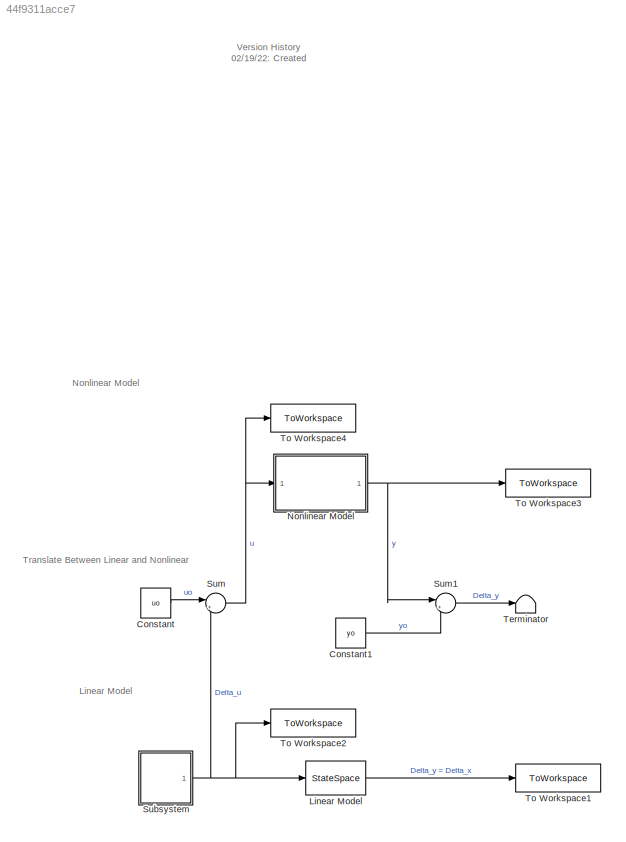
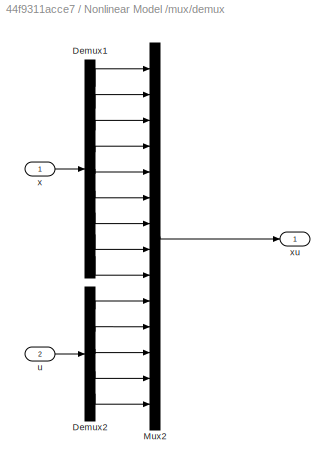
MODEL slx_44f9311acce7
KIND model
CONFIG AbsTol = auto
CONFIG EnableMultiTasking = on
CONFIG FixedStep = t_sample
CONFIG MaxStep = .05
CONFIG MinStep = auto
CONFIG RelTol = 1e-3
CONFIG SampleTimeConstraint = Unconstrained
CONFIG SolverName = ode3
CONFIG StartTime = 0.0
CONFIG StopTime = t_final
BLOCK [Constant] Constant
  Value = uo
BLOCK [Constant] Constant1
  Value = yo
BLOCK [StateSpace] Linear Model
  A = A
  B = B
  C = C
  D = D
  InitialCondition = Delta_x0
  Ports = [1, 1]
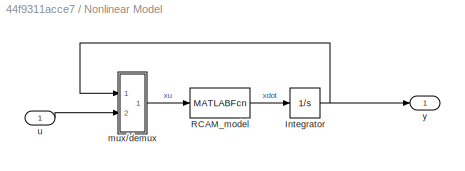
BLOCK [SubSystem] Nonlinear Model 
  Ports = [1, 1]
  RequestExecContextInheritance = off
BLOCK [Integrator] Nonlinear Model /Integrator
  InitialCondition = xo+Delta_x0
  Ports = [1, 1]
BLOCK [MATLABFcn] Nonlinear Model /RCAM_model
  MATLABFcn = RCAM_model([u(1);u(2);u(3);u(4);u(5);u(6);u(7);u(8);u(9)],[u(10);u(11);u(12);u(13);u(14)])
  Ports = [1, 1]
BLOCK [SubSystem] Nonlinear Model /mux//demux
  Ports = [2, 1]
  RequestExecContextInheritance = off
BLOCK [Demux] Nonlinear Model /mux//demux/Demux1
  DisplayOption = none
  Outputs = 9
  Ports = [1, 9]
BLOCK [Demux] Nonlinear Model /mux//demux/Demux2
  DisplayOption = none
  Outputs = 5
  Ports = [1, 5]
BLOCK [Mux] Nonlinear Model /mux//demux/Mux2
  DisplayOption = bar
  Inputs = 14
  Ports = [14, 1]
BLOCK [Inport] Nonlinear Model /mux//demux/u
  Port = 2
BLOCK [Inport] Nonlinear Model /mux//demux/x
BLOCK [Outport] Nonlinear Model /mux//demux/xu
  VectorParamsAs1DForOutWhenUnconnected = off
BLOCK [Inport] Nonlinear Model /u
BLOCK [Outport] Nonlinear Model /y
  VectorParamsAs1DForOutWhenUnconnected = off
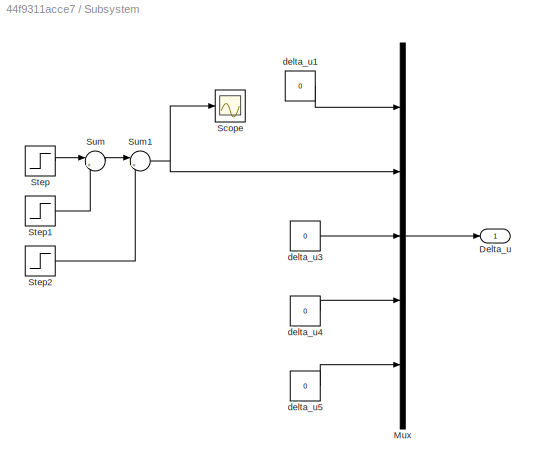
BLOCK [SubSystem] Subsystem
  Ports = [0, 1]
  RequestExecContextInheritance = off
BLOCK [Outport] Subsystem/Delta_u
  VectorParamsAs1DForOutWhenUnconnected = off
BLOCK [Mux] Subsystem/Mux
  DisplayOption = bar
  Inputs = 5
  Ports = [5, 1]
BLOCK [Scope] Subsystem/Scope
  Floating = off
  NumInputPorts = 1
  Ports = [1]
  ScopeSpecificationString = C++SS(StrPVP('Location','[188, 390, 512, 629]'),StrPVP('Open','off'),MxPVP('AxesTitles',54,'struct(''axes1'',''%<SignalLabel>'')'),StrPVP('DataFormat','StructureWithTime'),StrPVP('BlockParamSampleTime','0'),StrPVP('LimitDataPoints','on'),StrPVP('Decimation','1'),StrPVP('BlockParamSampleInput','off'))
BLOCK [Step] Subsystem/Step
  After = doublet_mag
  SampleTime = 0
  Time = 5
BLOCK [Step] Subsystem/Step1
  After = -2*doublet_mag
  SampleTime = 0
  Time = 5+doublet_duration
BLOCK [Step] Subsystem/Step2
  After = doublet_mag
  SampleTime = 0
  Time = 5+2*doublet_duration
BLOCK [Sum] Subsystem/Sum
  Inputs = |++
  Ports = [2, 1]
  SaturateOnIntegerOverflow = on
BLOCK [Sum] Subsystem/Sum1
  Inputs = |++
  Ports = [2, 1]
  SaturateOnIntegerOverflow = on
BLOCK [Constant] Subsystem/delta_u1
  Value = 0
BLOCK [Constant] Subsystem/delta_u3
  Value = 0
BLOCK [Constant] Subsystem/delta_u4
  Value = 0
BLOCK [Constant] Subsystem/delta_u5
  Value = 0
BLOCK [Sum] Sum
  Inputs = |++
  Ports = [2, 1]
BLOCK [Sum] Sum1
  Inputs = |+-
  Ports = [2, 1]
BLOCK [Terminator] Terminator
BLOCK [ToWorkspace] To Workspace1
  MaxDataPoints = inf
  Ports = [1]
  SampleTime = -1
  SaveFormat = Structure With Time
  VariableName = sim_Delta_y
BLOCK [ToWorkspace] To Workspace2
  MaxDataPoints = inf
  Ports = [1]
  SampleTime = -1
  SaveFormat = Structure With Time
  VariableName = sim_Delta_u
BLOCK [ToWorkspace] To Workspace3
  MaxDataPoints = inf
  Ports = [1]
  SampleTime = -1
  SaveFormat = Structure With Time
  VariableName = sim_y
BLOCK [ToWorkspace] To Workspace4
  MaxDataPoints = inf
  Ports = [1]
  SampleTime = -1
  SaveFormat = Structure With Time
  VariableName = sim_u
ANNOTATION (root): Linear Model
ANNOTATION (root): Nonlinear Model
ANNOTATION (root): Translate Between Linear and Nonlinear
ANNOTATION (root): Version History 02/19/22: Created
LINE Constant1:1 -> Sum1:2
LINE Constant:1 -> Sum:1
LINE Linear Model:1 -> To Workspace1:1
NET Nonlinear Model /Integrator:1 -> Nonlinear Model /mux//demux:1, Nonlinear Model /y:1
LINE Nonlinear Model /RCAM_model:1 -> Nonlinear Model /Integrator:1
LINE Nonlinear Model /mux//demux/Demux1:1 -> Nonlinear Model /mux//demux/Mux2:1
LINE Nonlinear Model /mux//demux/Demux1:2 -> Nonlinear Model /mux//demux/Mux2:2
LINE Nonlinear Model /mux//demux/Demux1:3 -> Nonlinear Model /mux//demux/Mux2:3
LINE Nonlinear Model /mux//demux/Demux1:4 -> Nonlinear Model /mux//demux/Mux2:4
LINE Nonlinear Model /mux//demux/Demux1:5 -> Nonlinear Model /mux//demux/Mux2:5
LINE Nonlinear Model /mux//demux/Demux1:6 -> Nonlinear Model /mux//demux/Mux2:6
LINE Nonlinear Model /mux//demux/Demux1:7 -> Nonlinear Model /mux//demux/Mux2:7
LINE Nonlinear Model /mux//demux/Demux1:8 -> Nonlinear Model /mux//demux/Mux2:8
LINE Nonlinear Model /mux//demux/Demux1:9 -> Nonlinear Model /mux//demux/Mux2:9
LINE Nonlinear Model /mux//demux/Demux2:1 -> Nonlinear Model /mux//demux/Mux2:10
LINE Nonlinear Model /mux//demux/Demux2:2 -> Nonlinear Model /mux//demux/Mux2:11
LINE Nonlinear Model /mux//demux/Demux2:3 -> Nonlinear Model /mux//demux/Mux2:12
LINE Nonlinear Model /mux//demux/Demux2:4 -> Nonlinear Model /mux//demux/Mux2:13
LINE Nonlinear Model /mux//demux/Demux2:5 -> Nonlinear Model /mux//demux/Mux2:14
LINE Nonlinear Model /mux//demux/Mux2:1 -> Nonlinear Model /mux//demux/xu:1
LINE Nonlinear Model /mux//demux/u:1 -> Nonlinear Model /mux//demux/Demux2:1
LINE Nonlinear Model /mux//demux/x:1 -> Nonlinear Model /mux//demux/Demux1:1
LINE Nonlinear Model /mux//demux:1 -> Nonlinear Model /RCAM_model:1
LINE Nonlinear Model /u:1 -> Nonlinear Model /mux//demux:2
NET Nonlinear Model :1 -> Sum1:1, To Workspace3:1
LINE Subsystem/Mux:1 -> Subsystem/Delta_u:1
LINE Subsystem/Step1:1 -> Subsystem/Sum:2
LINE Subsystem/Step2:1 -> Subsystem/Sum1:2
LINE Subsystem/Step:1 -> Subsystem/Sum:1
NET Subsystem/Sum1:1 -> Subsystem/Mux:2, Subsystem/Scope:1
LINE Subsystem/Sum:1 -> Subsystem/Sum1:1
LINE Subsystem/delta_u1:1 -> Subsystem/Mux:1
LINE Subsystem/delta_u3:1 -> Subsystem/Mux:3
LINE Subsystem/delta_u4:1 -> Subsystem/Mux:4
LINE Subsystem/delta_u5:1 -> Subsystem/Mux:5
NET Subsystem:1 -> Linear Model:1, Sum:2, To Workspace2:1
LINE Sum1:1 -> Terminator:1
NET Sum:1 -> Nonlinear Model :1, To Workspace4:1
note: NET lines group one-source signal fan-out (src -> all destinations, sorted); 1:1 wires keep LINE
